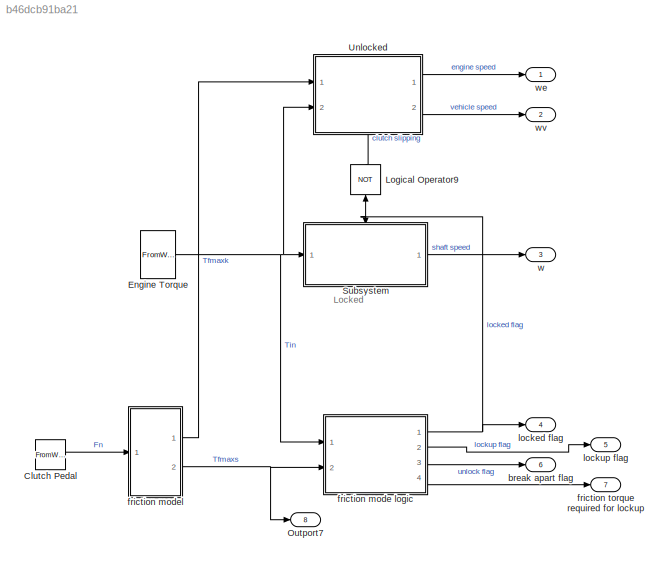
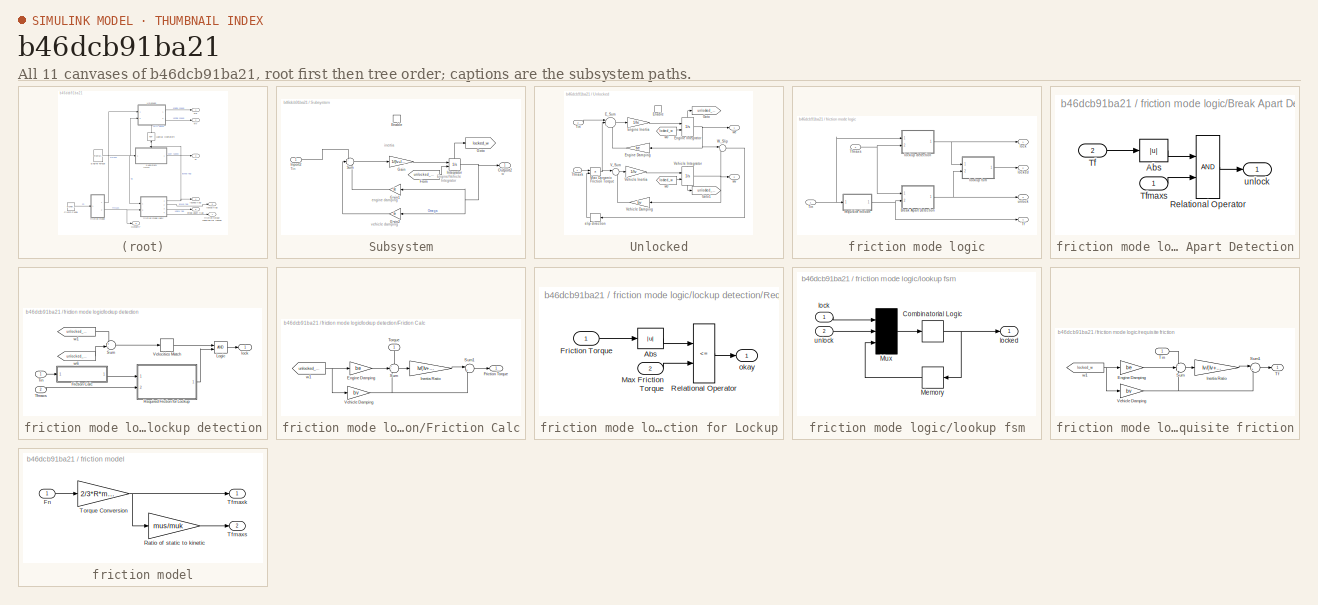
[diagram: thumbnail index - all 11 canvases of the model, root first then tree order]
MODEL slx_b46dcb91ba21
KIND model
CONFIG AbsTol = auto
CONFIG EnableMultiTasking = off
CONFIG FixedStep = auto
CONFIG MaxStep = auto
CONFIG MinStep = auto
CONFIG RelTol = 1e-3
CONFIG SampleTimeConstraint = Unconstrained
CONFIG SolverName = VariableStepAuto
CONFIG StartTime = 0.0
CONFIG StopTime = 10.0
WORKSPACE source: mxarray member
WORKSPACE Fn: Simulink.Parameter (value not decoded)
WORKSPACE R: Simulink.Parameter (value not decoded)
WORKSPACE Tin: Simulink.Parameter (value not decoded)
WORKSPACE be: Simulink.Parameter (value not decoded)
WORKSPACE bv: Simulink.Parameter (value not decoded)
WORKSPACE f1: Simulink.Parameter (value not decoded)
WORKSPACE le: Simulink.Parameter (value not decoded)
WORKSPACE lv: Simulink.Parameter (value not decoded)
WORKSPACE muk: Simulink.Parameter (value not decoded)
WORKSPACE mus: Simulink.Parameter (value not decoded)
BLOCK [FromWorkspace] Clutch Pedal
  VariableName = Fn
  ZeroCross = off
BLOCK [FromWorkspace] Engine Torque
  VariableName = Tin
  ZeroCross = off
BLOCK [Logic] Logical Operator9
  IconShape = distinctive
  Inputs = 1
  NameLocation = left
  Operator = NOT
  OutDataTypeStr = boolean
  Ports = [1, 1]
BLOCK [Outport] Outport7
  Port = 8
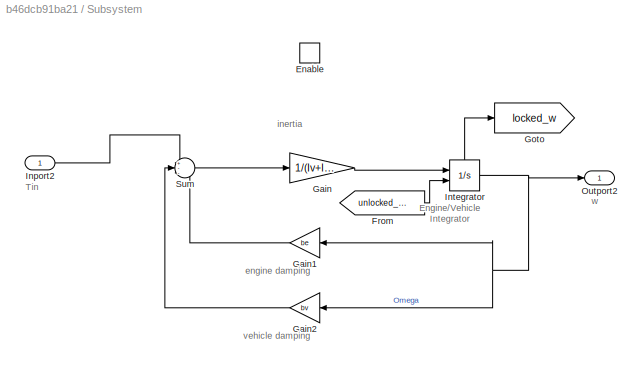
BLOCK [SubSystem] Subsystem
  Ports = [1, 1, 1]
  RequestExecContextInheritance = off
BLOCK [EnablePort] Subsystem/Enable
  Ports = []
  StatesWhenEnabling = reset
BLOCK [From] Subsystem/From
  GotoTag = unlocked_we
  TagVisibility = global
BLOCK [Gain] Subsystem/Gain
  Gain = 1/(Iv+Ie)
BLOCK [Gain] Subsystem/Gain1
  Gain = be
  NameLocation = top
BLOCK [Gain] Subsystem/Gain2
  Gain = bv
  NameLocation = top
BLOCK [Goto] Subsystem/Goto
  GotoTag = locked_w
  TagVisibility = global
BLOCK [Inport] Subsystem/Inport2
BLOCK [Integrator] Subsystem/Integrator
  InitialConditionSource = external
  Ports = [2, 1, 0, 0, 1]
  ShowStatePort = on
BLOCK [Outport] Subsystem/Outport2
BLOCK [Sum] Subsystem/Sum
  Inputs = +--
  Ports = [3, 1]
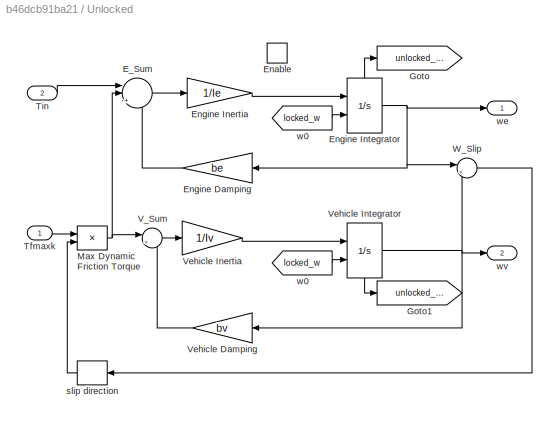
BLOCK [SubSystem] Unlocked
  NameLocation = top
  Ports = [2, 2, 1]
  RequestExecContextInheritance = off
BLOCK [Sum] Unlocked/E_Sum
  InputSameDT = on
  Inputs = ||+--
  NameLocation = top
  OutDataTypeStr = Inherit: Same as first input
  Ports = [3, 1]
  SaturateOnIntegerOverflow = on
BLOCK [EnablePort] Unlocked/Enable
  Ports = []
  StatesWhenEnabling = reset
BLOCK [Gain] Unlocked/Engine Damping
  Gain = be
  OutDataTypeStr = Inherit: Same as input
  ParamDataTypeStr = Inherit: Same as input
  SaturateOnIntegerOverflow = on
BLOCK [Gain] Unlocked/Engine Inertia
  Gain = 1/Ie
  OutDataTypeStr = Inherit: Same as input
  ParamDataTypeStr = Inherit: Same as input
  SaturateOnIntegerOverflow = on
BLOCK [Integrator] Unlocked/Engine Integrator
  InitialConditionSource = external
  Ports = [2, 1, 0, 0, 1]
  ShowStatePort = on
BLOCK [Goto] Unlocked/Goto
  GotoTag = unlocked_we
  TagVisibility = global
BLOCK [Goto] Unlocked/Goto1
  GotoTag = unlocked_wv
  TagVisibility = global
BLOCK [Product] Unlocked/Max Dynamic Friction Torque
  InputSameDT = on
  OutDataTypeStr = Inherit: Same as first input
  Ports = [2, 1]
  RndMeth = Zero
  SaturateOnIntegerOverflow = on
BLOCK [Inport] Unlocked/Tfmaxk
BLOCK [Inport] Unlocked/Tin
  Port = 2
BLOCK [Sum] Unlocked/V_Sum
  InputSameDT = on
  Inputs = |+-
  NameLocation = top
  OutDataTypeStr = Inherit: Same as first input
  Ports = [2, 1]
  SaturateOnIntegerOverflow = on
BLOCK [Gain] Unlocked/Vehicle Damping
  Gain = bv
  OutDataTypeStr = Inherit: Same as input
  ParamDataTypeStr = Inherit: Same as input
  SaturateOnIntegerOverflow = on
BLOCK [Gain] Unlocked/Vehicle Inertia
  Gain = 1/Iv
  OutDataTypeStr = Inherit: Same as input
  ParamDataTypeStr = Inherit: Same as input
  SaturateOnIntegerOverflow = on
BLOCK [Integrator] Unlocked/Vehicle Integrator
  InitialConditionSource = external
  NameLocation = top
  Ports = [2, 1, 0, 0, 1]
  ShowStatePort = on
BLOCK [Sum] Unlocked/W_Slip
  InputSameDT = on
  Inputs = |+-
  NameLocation = top
  OutDataTypeStr = Inherit: Same as first input
  Ports = [2, 1]
  SaturateOnIntegerOverflow = on
BLOCK [Signum] Unlocked/slip direction
BLOCK [From] Unlocked/w0
  GotoTag = locked_w
  TagVisibility = global
BLOCK [From] Unlocked/w0 
  GotoTag = locked_w
  TagVisibility = global
BLOCK [Outport] Unlocked/we
  InitialOutput = 0
  VectorParamsAs1DForOutWhenUnconnected = off
BLOCK [Outport] Unlocked/wv
  InitialOutput = 0
  Port = 2
  VectorParamsAs1DForOutWhenUnconnected = off
BLOCK [Outport] break apart flag
  Port = 6
BLOCK [SubSystem] friction mode logic
  Ports = [2, 4]
  RequestExecContextInheritance = off
BLOCK [SubSystem] friction mode logic/Break Apart Detection
  Ports = [2, 1]
  RequestExecContextInheritance = off
BLOCK [Abs] friction mode logic/Break Apart Detection/Abs
BLOCK [RelationalOperator] friction mode logic/Break Apart Detection/Relational Operator
  OutDataTypeStr = boolean
  Ports = [2, 1]
BLOCK [Inport] friction mode logic/Break Apart Detection/Tf
  Port = 2
BLOCK [Inport] friction mode logic/Break Apart Detection/Tfmaxs
BLOCK [Outport] friction mode logic/Break Apart Detection/unlock
  InitialOutput = 0
  VectorParamsAs1DForOutWhenUnconnected = off
BLOCK [Outport] friction mode logic/Tf
  Port = 4
BLOCK [Inport] friction mode logic/Tfmaxs
  Port = 2
BLOCK [Inport] friction mode logic/Tin
BLOCK [Outport] friction mode logic/lock
BLOCK [Outport] friction mode logic/locked
  Port = 2
BLOCK [SubSystem] friction mode logic/lockup detection
  Ports = [2, 1]
  RequestExecContextInheritance = off
BLOCK [SubSystem] friction mode logic/lockup detection/Friction Calc
  Ports = [1, 1]
  RequestExecContextInheritance = off
BLOCK [Gain] friction mode logic/lockup detection/Friction Calc/Engine Damping
  Gain = be
  NameLocation = top
  OutDataTypeStr = Inherit: Same as input
  ParamDataTypeStr = Inherit: Same as input
  SaturateOnIntegerOverflow = on
BLOCK [Outport] friction mode logic/lockup detection/Friction Calc/Friction Torque
  InitialOutput = 0
  VectorParamsAs1DForOutWhenUnconnected = off
BLOCK [Gain] friction mode logic/lockup detection/Friction Calc/Inertia Ratio
  Gain = Iv/(Iv+Ie)
  OutDataTypeStr = Inherit: Same as input
  ParamDataTypeStr = Inherit: Same as input
  SaturateOnIntegerOverflow = on
BLOCK [Sum] friction mode logic/lockup detection/Friction Calc/Sum
  InputSameDT = on
  Inputs = +--
  OutDataTypeStr = Inherit: Same as first input
  Ports = [3, 1]
  SaturateOnIntegerOverflow = on
BLOCK [Sum] friction mode logic/lockup detection/Friction Calc/Sum1
  InputSameDT = on
  Inputs = |++
  OutDataTypeStr = Inherit: Same as first input
  Ports = [2, 1]
  SaturateOnIntegerOverflow = on
BLOCK [Inport] friction mode logic/lockup detection/Friction Calc/Torque
  NameLocation = left
BLOCK [Gain] friction mode logic/lockup detection/Friction Calc/Vehicle Damping
  Gain = bv
  OutDataTypeStr = Inherit: Same as input
  ParamDataTypeStr = Inherit: Same as input
  SaturateOnIntegerOverflow = on
BLOCK [From] friction mode logic/lockup detection/Friction Calc/w1
  GotoTag = unlocked_we
  TagVisibility = global
BLOCK [Logic] friction mode logic/lockup detection/Logic
  AttributesFormatString = (%<Operator>)
  IconShape = distinctive
  OutDataTypeStr = boolean
  Ports = [2, 1]
BLOCK [SubSystem] friction mode logic/lockup detection/Required Friction for Lockup
  Ports = [2, 1]
  RequestExecContextInheritance = off
BLOCK [Abs] friction mode logic/lockup detection/Required Friction for Lockup/Abs
BLOCK [Inport] friction mode logic/lockup detection/Required Friction for Lockup/Friction Torque
BLOCK [Inport] friction mode logic/lockup detection/Required Friction for Lockup/Max Friction Torque
  Port = 2
BLOCK [RelationalOperator] friction mode logic/lockup detection/Required Friction for Lockup/Relational Operator
  Operator = <=
  OutDataTypeStr = boolean
  Ports = [2, 1]
BLOCK [Outport] friction mode logic/lockup detection/Required Friction for Lockup/okay
  InitialOutput = 0
  VectorParamsAs1DForOutWhenUnconnected = off
BLOCK [Sum] friction mode logic/lockup detection/Sum
  InputSameDT = on
  Inputs = +-
  OutDataTypeStr = Inherit: Same as first input
  Ports = [2, 1]
  SaturateOnIntegerOverflow = on
BLOCK [Inport] friction mode logic/lockup detection/Tfmaxs
  Port = 2
BLOCK [Inport] friction mode logic/lockup detection/Tin
BLOCK [HitCross] friction mode logic/lockup detection/Velocities Match
  Ports = [1, 1]
BLOCK [Outport] friction mode logic/lockup detection/lock
  InitialOutput = 0
  VectorParamsAs1DForOutWhenUnconnected = off
BLOCK [From] friction mode logic/lockup detection/w1
  GotoTag = unlocked_we
  TagVisibility = global
BLOCK [From] friction mode logic/lockup detection/w6
  GotoTag = unlocked_wv
  TagVisibility = global
BLOCK [SubSystem] friction mode logic/lookup fsm
  Ports = [2, 1]
  RequestExecContextInheritance = off
BLOCK [CombinatorialLogic] friction mode logic/lookup fsm/Combinatorial Logic
  TruthTable = [0;1;0;0;1;1;1;0]
BLOCK [Memory] friction mode logic/lookup fsm/Memory
BLOCK [Mux] friction mode logic/lookup fsm/Mux
  Inputs = 3
  Ports = [3, 1]
BLOCK [Inport] friction mode logic/lookup fsm/lock
  NameLocation = top
BLOCK [Outport] friction mode logic/lookup fsm/locked
  InitialOutput = 0
  VectorParamsAs1DForOutWhenUnconnected = off
BLOCK [Inport] friction mode logic/lookup fsm/unlock
  Port = 2
BLOCK [SubSystem] friction mode logic/requisite friction
  Ports = [1, 1]
  RequestExecContextInheritance = off
BLOCK [Gain] friction mode logic/requisite friction/Engine Damping
  Gain = be
  NameLocation = top
  OutDataTypeStr = Inherit: Same as input
  ParamDataTypeStr = Inherit: Same as input
  SaturateOnIntegerOverflow = on
BLOCK [Gain] friction mode logic/requisite friction/Inertia Ratio
  Gain = Iv/(Iv+Ie)
  OutDataTypeStr = Inherit: Same as input
  ParamDataTypeStr = Inherit: Same as input
  SaturateOnIntegerOverflow = on
BLOCK [Sum] friction mode logic/requisite friction/Sum
  InputSameDT = on
  Inputs = +--
  OutDataTypeStr = Inherit: Same as first input
  Ports = [3, 1]
  SaturateOnIntegerOverflow = on
BLOCK [Sum] friction mode logic/requisite friction/Sum1
  InputSameDT = on
  Inputs = |++
  OutDataTypeStr = Inherit: Same as first input
  Ports = [2, 1]
  SaturateOnIntegerOverflow = on
BLOCK [Outport] friction mode logic/requisite friction/Tf
  InitialOutput = 0
  VectorParamsAs1DForOutWhenUnconnected = off
BLOCK [Inport] friction mode logic/requisite friction/Tin
BLOCK [Gain] friction mode logic/requisite friction/Vehicle Damping
  Gain = bv
  OutDataTypeStr = Inherit: Same as input
  ParamDataTypeStr = Inherit: Same as input
  SaturateOnIntegerOverflow = on
BLOCK [From] friction mode logic/requisite friction/w1
  GotoTag = locked_w
  NameLocation = top
  TagVisibility = global
BLOCK [Outport] friction mode logic/unlock
  Port = 3
BLOCK [SubSystem] friction model
  Ports = [1, 2]
  RequestExecContextInheritance = off
BLOCK [Inport] friction model/Fn
BLOCK [Gain] friction model/Ratio of static to kinetic
  Gain = mus/muk
  OutDataTypeStr = Inherit: Same as input
  ParamDataTypeStr = Inherit: Same as input
  SaturateOnIntegerOverflow = on
BLOCK [Outport] friction model/Tfmaxk
  InitialOutput = 0
  VectorParamsAs1DForOutWhenUnconnected = off
BLOCK [Outport] friction model/Tfmaxs
  InitialOutput = 0
  Port = 2
  VectorParamsAs1DForOutWhenUnconnected = off
BLOCK [Gain] friction model/Torque Conversion
  Gain = 2/3*R*muk
  OutDataTypeStr = Inherit: Same as input
  ParamDataTypeStr = Inherit: Same as input
  SaturateOnIntegerOverflow = on
BLOCK [Outport] friction torque required for lockup
  Port = 7
BLOCK [Outport] locked flag
  Port = 4
BLOCK [Outport] lockup flag
  Port = 5
BLOCK [Outport] w
  Port = 3
BLOCK [Outport] we
BLOCK [Outport] wv
  Port = 2
ANNOTATION (root): Locked
ANNOTATION Subsystem: Engine/Vehicle Integrator
ANNOTATION Subsystem: Tin
ANNOTATION Subsystem: engine damping
ANNOTATION Subsystem: inertia
ANNOTATION Subsystem: vehicle damping
ANNOTATION Subsystem: w
LINE Clutch Pedal:1 -> friction model:1
NET Engine Torque:1 -> Subsystem:1, Unlocked:2, friction mode logic:1
LINE Logical Operator9:1 -> Unlocked:enable
LINE Subsystem/From:1 -> Subsystem/Integrator:2
LINE Subsystem/Gain1:1 -> Subsystem/Sum:3
LINE Subsystem/Gain2:1 -> Subsystem/Sum:2
LINE Subsystem/Gain:1 -> Subsystem/Integrator:1
LINE Subsystem/Inport2:1 -> Subsystem/Sum:1
NET Subsystem/Integrator:1 -> Subsystem/Gain1:1, Subsystem/Gain2:1, Subsystem/Outport2:1
LINE Subsystem/Integrator:state -> Subsystem/Goto:1
LINE Subsystem/Sum:1 -> Subsystem/Gain:1
LINE Subsystem:1 -> w:1
LINE Unlocked/E_Sum:1 -> Unlocked/Engine Inertia:1
LINE Unlocked/Engine Damping:1 -> Unlocked/E_Sum:3
LINE Unlocked/Engine Inertia:1 -> Unlocked/Engine Integrator:1
NET Unlocked/Engine Integrator:1 -> Unlocked/Engine Damping:1, Unlocked/W_Slip:1, Unlocked/we:1
LINE Unlocked/Engine Integrator:state -> Unlocked/Goto:1
NET Unlocked/Max Dynamic Friction Torque:1 -> Unlocked/E_Sum:2, Unlocked/V_Sum:1
LINE Unlocked/Tfmaxk:1 -> Unlocked/Max Dynamic Friction Torque:1
LINE Unlocked/Tin:1 -> Unlocked/E_Sum:1
LINE Unlocked/V_Sum:1 -> Unlocked/Vehicle Inertia:1
LINE Unlocked/Vehicle Damping:1 -> Unlocked/V_Sum:2
LINE Unlocked/Vehicle Inertia:1 -> Unlocked/Vehicle Integrator:1
NET Unlocked/Vehicle Integrator:1 -> Unlocked/Vehicle Damping:1, Unlocked/W_Slip:2, Unlocked/wv:1
LINE Unlocked/Vehicle Integrator:state -> Unlocked/Goto1:1
LINE Unlocked/W_Slip:1 -> Unlocked/slip direction:1
LINE Unlocked/slip direction:1 -> Unlocked/Max Dynamic Friction Torque:2
LINE Unlocked/w0 :1 -> Unlocked/Engine Integrator:2
LINE Unlocked/w0:1 -> Unlocked/Vehicle Integrator:2
LINE Unlocked:1 -> we:1
LINE Unlocked:2 -> wv:1
LINE friction mode logic/Break Apart Detection/Abs:1 -> friction mode logic/Break Apart Detection/Relational Operator:1
LINE friction mode logic/Break Apart Detection/Relational Operator:1 -> friction mode logic/Break Apart Detection/unlock:1
LINE friction mode logic/Break Apart Detection/Tf:1 -> friction mode logic/Break Apart Detection/Abs:1
LINE friction mode logic/Break Apart Detection/Tfmaxs:1 -> friction mode logic/Break Apart Detection/Relational Operator:2
NET friction mode logic/Break Apart Detection:1 -> friction mode logic/lookup fsm:2, friction mode logic/unlock:1
NET friction mode logic/Tfmaxs:1 -> friction mode logic/Break Apart Detection:1, friction mode logic/lockup detection:2
NET friction mode logic/Tin:1 -> friction mode logic/lockup detection:1, friction mode logic/requisite friction:1
LINE friction mode logic/lockup detection/Friction Calc/Engine Damping:1 -> friction mode logic/lockup detection/Friction Calc/Sum:2
LINE friction mode logic/lockup detection/Friction Calc/Inertia Ratio:1 -> friction mode logic/lockup detection/Friction Calc/Sum1:1
LINE friction mode logic/lockup detection/Friction Calc/Sum1:1 -> friction mode logic/lockup detection/Friction Calc/Friction Torque:1
LINE friction mode logic/lockup detection/Friction Calc/Sum:1 -> friction mode logic/lockup detection/Friction Calc/Inertia Ratio:1
LINE friction mode logic/lockup detection/Friction Calc/Torque:1 -> friction mode logic/lockup detection/Friction Calc/Sum:1
NET friction mode logic/lockup detection/Friction Calc/Vehicle Damping:1 -> friction mode logic/lockup detection/Friction Calc/Sum1:2, friction mode logic/lockup detection/Friction Calc/Sum:3
NET friction mode logic/lockup detection/Friction Calc/w1:1 -> friction mode logic/lockup detection/Friction Calc/Engine Damping:1, friction mode logic/lockup detection/Friction Calc/Vehicle Damping:1
LINE friction mode logic/lockup detection/Friction Calc:1 -> friction mode logic/lockup detection/Required Friction for Lockup:1
LINE friction mode logic/lockup detection/Logic:1 -> friction mode logic/lockup detection/lock:1
LINE friction mode logic/lockup detection/Required Friction for Lockup/Abs:1 -> friction mode logic/lockup detection/Required Friction for Lockup/Relational Operator:1
LINE friction mode logic/lockup detection/Required Friction for Lockup/Friction Torque:1 -> friction mode logic/lockup detection/Required Friction for Lockup/Abs:1
LINE friction mode logic/lockup detection/Required Friction for Lockup/Max Friction Torque:1 -> friction mode logic/lockup detection/Required Friction for Lockup/Relational Operator:2
LINE friction mode logic/lockup detection/Required Friction for Lockup/Relational Operator:1 -> friction mode logic/lockup detection/Required Friction for Lockup/okay:1
LINE friction mode logic/lockup detection/Required Friction for Lockup:1 -> friction mode logic/lockup detection/Logic:2
LINE friction mode logic/lockup detection/Sum:1 -> friction mode logic/lockup detection/Velocities Match:1
LINE friction mode logic/lockup detection/Tfmaxs:1 -> friction mode logic/lockup detection/Required Friction for Lockup:2
LINE friction mode logic/lockup detection/Tin:1 -> friction mode logic/lockup detection/Friction Calc:1
LINE friction mode logic/lockup detection/Velocities Match:1 -> friction mode logic/lockup detection/Logic:1
LINE friction mode logic/lockup detection/w1:1 -> friction mode logic/lockup detection/Sum:1
LINE friction mode logic/lockup detection/w6:1 -> friction mode logic/lockup detection/Sum:2
NET friction mode logic/lockup detection:1 -> friction mode logic/lock:1, friction mode logic/lookup fsm:1
NET friction mode logic/lookup fsm/Combinatorial Logic:1 -> friction mode logic/lookup fsm/Memory:1, friction mode logic/lookup fsm/locked:1
LINE friction mode logic/lookup fsm/Memory:1 -> friction mode logic/lookup fsm/Mux:3
LINE friction mode logic/lookup fsm/Mux:1 -> friction mode logic/lookup fsm/Combinatorial Logic:1
LINE friction mode logic/lookup fsm/lock:1 -> friction mode logic/lookup fsm/Mux:1
LINE friction mode logic/lookup fsm/unlock:1 -> friction mode logic/lookup fsm/Mux:2
LINE friction mode logic/lookup fsm:1 -> friction mode logic/locked:1
LINE friction mode logic/requisite friction/Engine Damping:1 -> friction mode logic/requisite friction/Sum:2
LINE friction mode logic/requisite friction/Inertia Ratio:1 -> friction mode logic/requisite friction/Sum1:1
LINE friction mode logic/requisite friction/Sum1:1 -> friction mode logic/requisite friction/Tf:1
LINE friction mode logic/requisite friction/Sum:1 -> friction mode logic/requisite friction/Inertia Ratio:1
LINE friction mode logic/requisite friction/Tin:1 -> friction mode logic/requisite friction/Sum:1
NET friction mode logic/requisite friction/Vehicle Damping:1 -> friction mode logic/requisite friction/Sum1:2, friction mode logic/requisite friction/Sum:3
NET friction mode logic/requisite friction/w1:1 -> friction mode logic/requisite friction/Engine Damping:1, friction mode logic/requisite friction/Vehicle Damping:1
NET friction mode logic/requisite friction:1 -> friction mode logic/Break Apart Detection:2, friction mode logic/Tf:1
NET friction mode logic:1 -> Logical Operator9:1, Subsystem:enable, locked flag:1
LINE friction mode logic:2 -> lockup flag:1
LINE friction mode logic:3 -> break apart flag:1
LINE friction mode logic:4 -> friction torque required for lockup:1
LINE friction model/Fn:1 -> friction model/Torque Conversion:1
LINE friction model/Ratio of static to kinetic:1 -> friction model/Tfmaxs:1
NET friction model/Torque Conversion:1 -> friction model/Ratio of static to kinetic:1, friction model/Tfmaxk:1
LINE friction model:1 -> Unlocked:1
NET friction model:2 -> Outport7:1, friction mode logic:2
note: NET lines group one-source signal fan-out (src -> all destinations, sorted); 1:1 wires keep LINE
